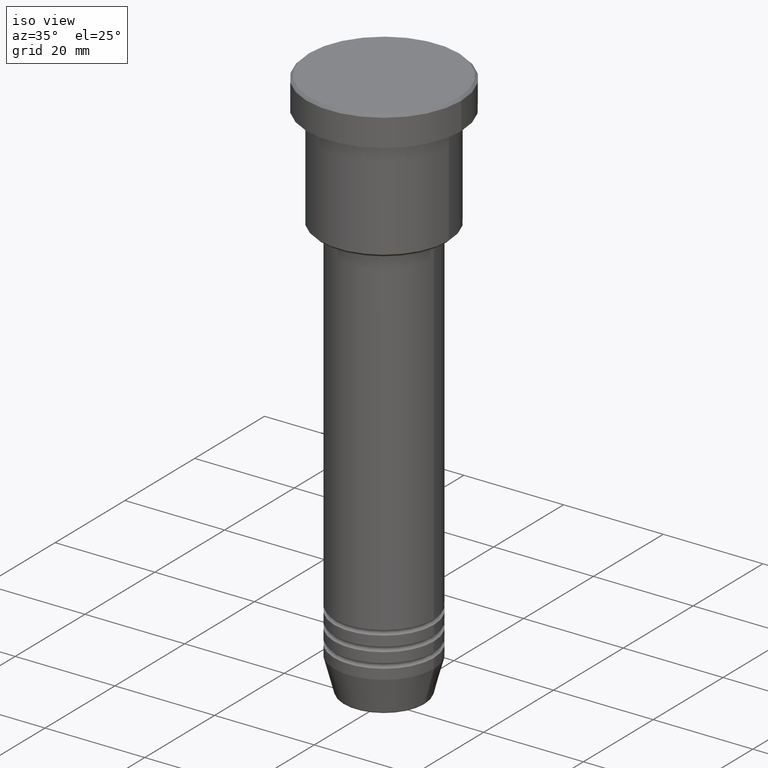
[diagram: clean part render]
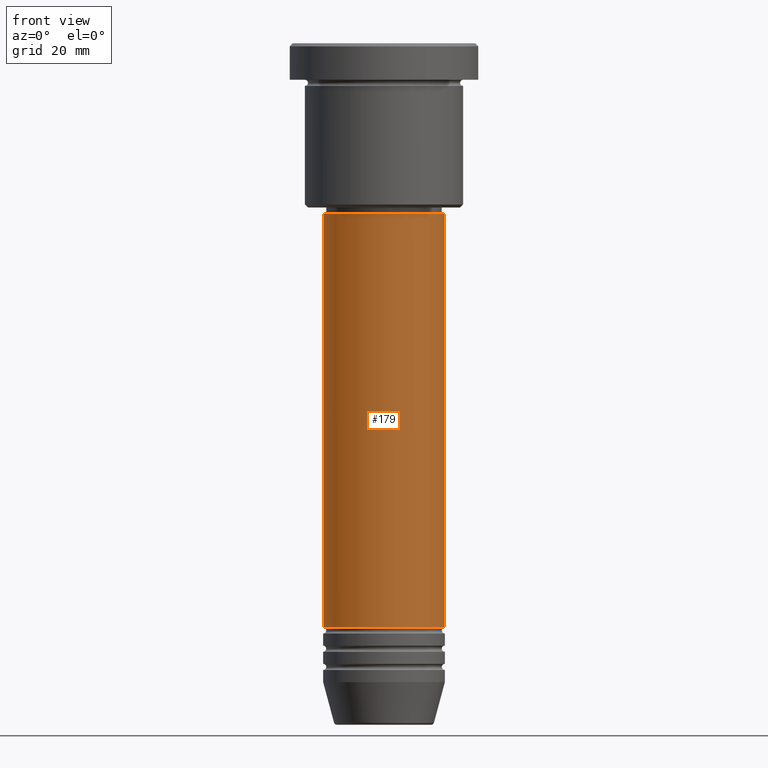
[diagram: tour spotlight — one face highlighted and labeled with its STEP entity id]
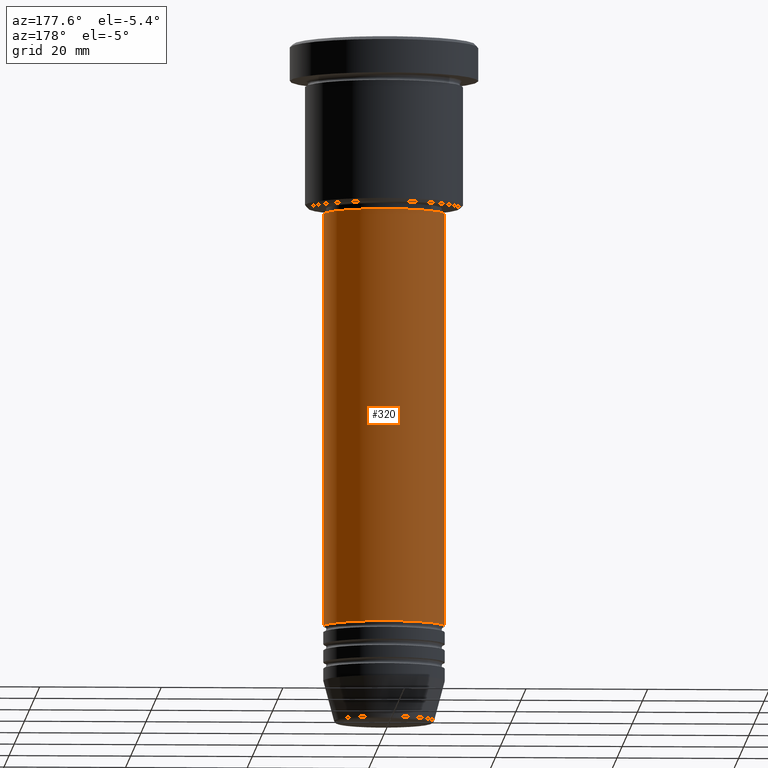
[diagram: tour spotlight — one face highlighted and labeled with its STEP entity id]
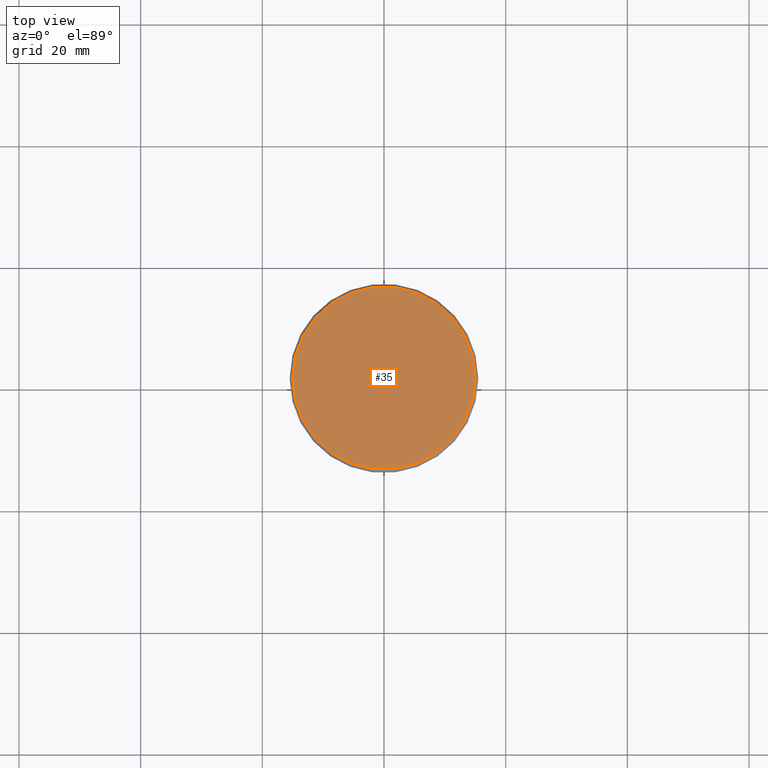
[diagram: tour spotlight — one face highlighted and labeled with its STEP entity id]
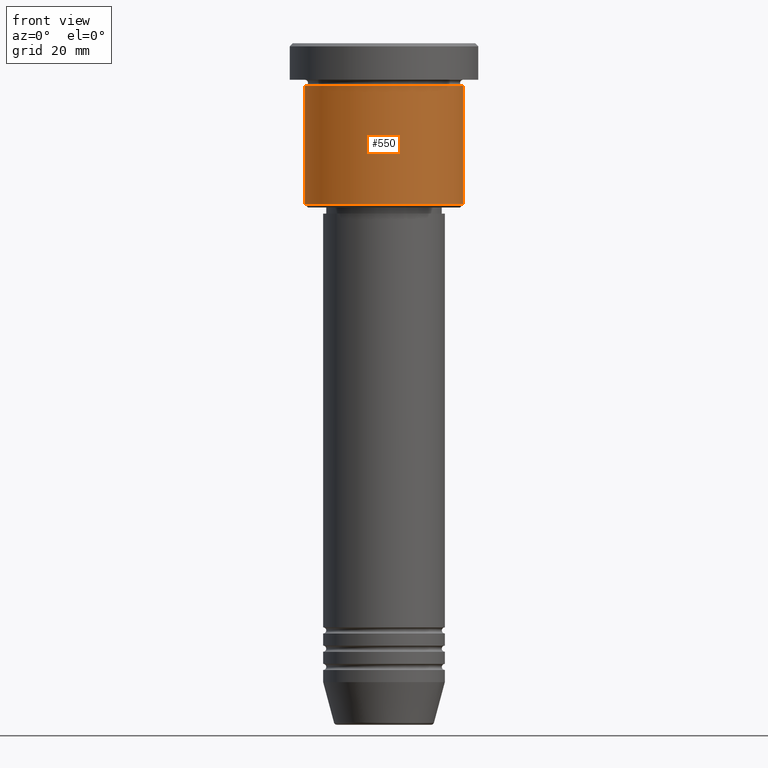
[diagram: tour spotlight — one face highlighted and labeled with its STEP entity id]
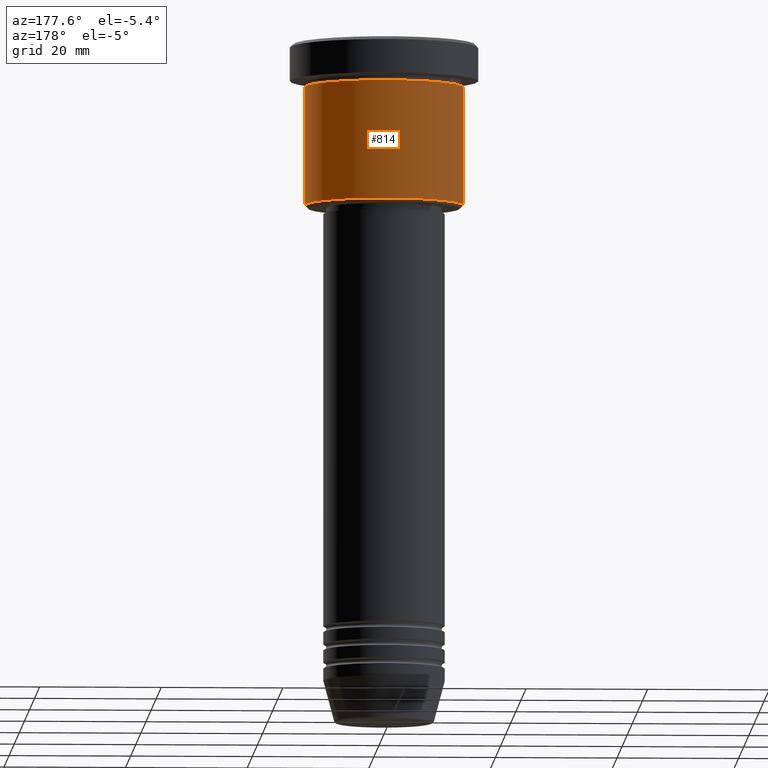
[diagram: tour spotlight — one face highlighted and labeled with its STEP entity id]
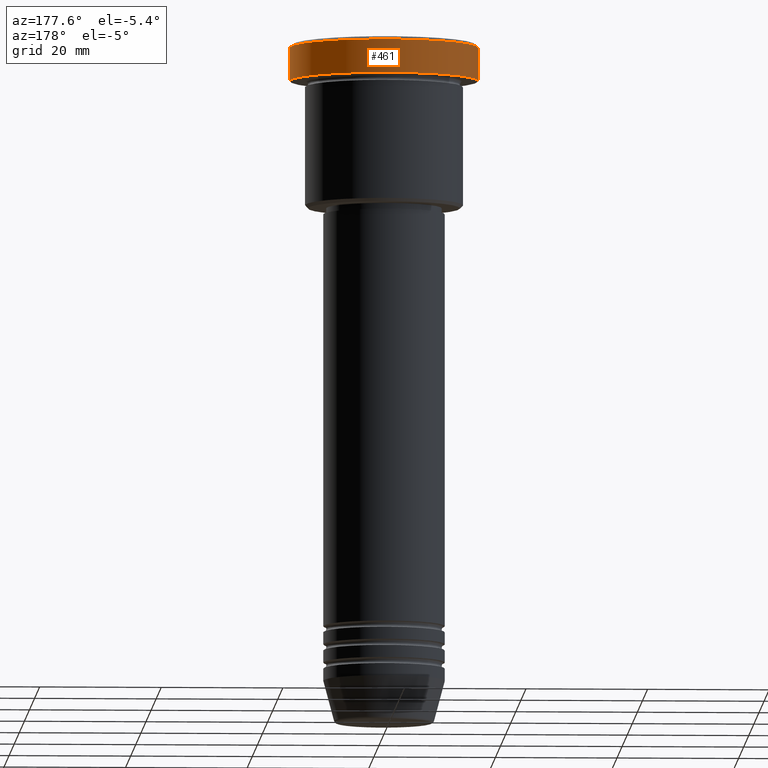
[diagram: tour spotlight — one face highlighted and labeled with its STEP entity id]
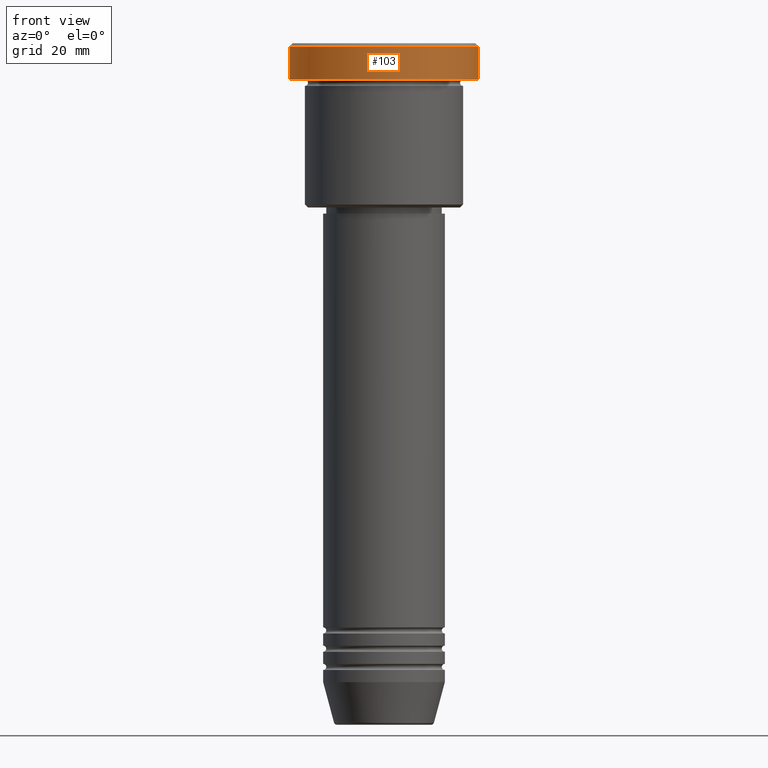
[diagram: tour spotlight — one face highlighted and labeled with its STEP entity id]
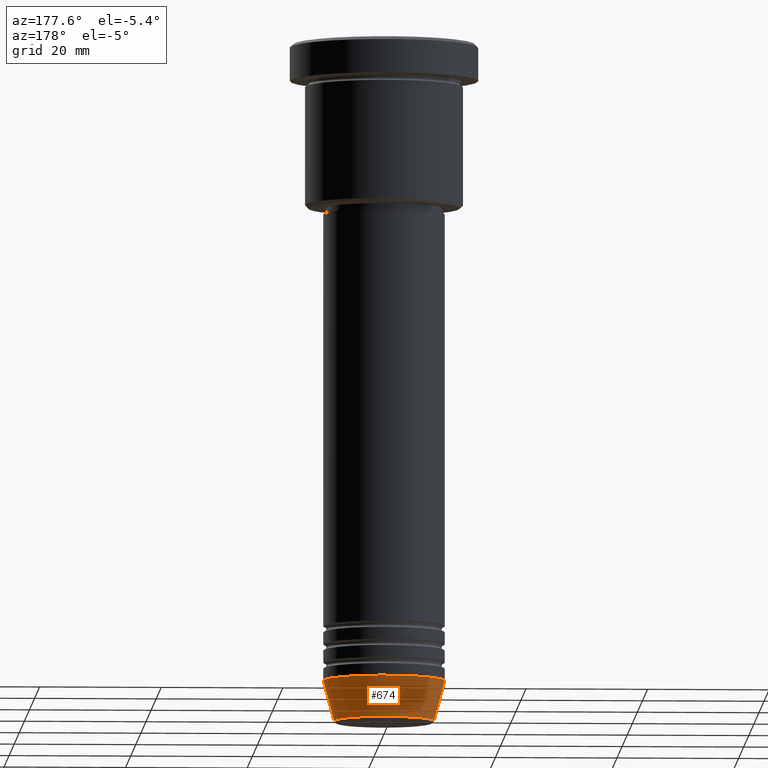
[diagram: tour spotlight — one face highlighted and labeled with its STEP entity id]
A machine part: a face-by-face anatomy tour. The part has 43 B-rep faces; the first image is the clean iso view, then the 8 largest visible faces are spotlighted one at a time (largest first), each with its STEP entity span.

Face 1 — front view, entity #179. In plain terms, the highlighted cylindrical surface (partial cylindrical patch) has radius 10 mm, axis along (-0, -0, 1).
Definition (entity closure, byte-faithful):
#51 = DIRECTION ( 'NONE',  ( 1.000000000000000000, 0.000000000000000000, 0.000000000000000000 ) ) ;
#57 = VECTOR ( 'NONE', #276, 1000.000000000000000 ) ;
#67 = EDGE_CURVE ( 'NONE', #1033, #838, #182, .T. ) ;
#97 = CARTESIAN_POINT ( 'NONE',  ( 10.00000000000000000, 0.000000000000000000, 0.000000000000000000 ) ) ;
#99 = ORIENTED_EDGE ( 'NONE', *, *, #339, .T. ) ;
#114 = CARTESIAN_POINT ( 'NONE',  ( 0.000000000000000000, 0.000000000000000000, 0.000000000000000000 ) ) ;
#146 = ORIENTED_EDGE ( 'NONE', *, *, #67, .F. ) ;
#156 = EDGE_CURVE ( 'NONE', #838, #1096, #908, .T. ) ;
#179 = ADVANCED_FACE ( 'NONE', ( #589 ), #398, .T. ) ;
#182 = LINE ( 'NONE', #543, #57 ) ;
#259 = CARTESIAN_POINT ( 'NONE',  ( -10.00000000000000000, 1.224646799147353256E-15, -28.00000000000000355 ) ) ;
#276 = DIRECTION ( 'NONE',  ( -0.000000000000000000, -0.000000000000000000, 1.000000000000000000 ) ) ;
#303 = EDGE_LOOP ( 'NONE', ( #146, #564, #99, #1057 ) ) ;
#311 = DIRECTION ( 'NONE',  ( -0.000000000000000000, -0.000000000000000000, 1.000000000000000000 ) ) ;
#333 = AXIS2_PLACEMENT_3D ( 'NONE', #114, #1042, #932 ) ;
#339 = EDGE_CURVE ( 'NONE', #514, #1096, #702, .T. ) ;
#398 = CYLINDRICAL_SURFACE ( 'NONE', #333, 10.00000000000000000 ) ;
#414 = CARTESIAN_POINT ( 'NONE',  ( 10.00000000000000000, 0.000000000000000000, -95.99999999999997158 ) ) ;
#419 = DIRECTION ( 'NONE',  ( -0.000000000000000000, -0.000000000000000000, 1.000000000000000000 ) ) ;
#435 = CARTESIAN_POINT ( 'NONE',  ( 0.000000000000000000, 0.000000000000000000, -95.99999999999997158 ) ) ;
#512 = CARTESIAN_POINT ( 'NONE',  ( 10.00000000000000000, 0.000000000000000000, -28.00000000000000355 ) ) ;
#514 = VERTEX_POINT ( 'NONE', #414 ) ;
#543 = CARTESIAN_POINT ( 'NONE',  ( -10.00000000000000000, 1.224646799147353256E-15, 0.000000000000000000 ) ) ;
#556 = VECTOR ( 'NONE', #708, 1000.000000000000000 ) ;
#564 = ORIENTED_EDGE ( 'NONE', *, *, #1034, .T. ) ;
#589 = FACE_OUTER_BOUND ( 'NONE', #303, .T. ) ;
#699 = CARTESIAN_POINT ( 'NONE',  ( -10.00000000000000000, 1.224646799147353256E-15, -95.99999999999997158 ) ) ;
#702 = LINE ( 'NONE', #97, #556 ) ;
#708 = DIRECTION ( 'NONE',  ( -0.000000000000000000, -0.000000000000000000, 1.000000000000000000 ) ) ;
#758 = CARTESIAN_POINT ( 'NONE',  ( 0.000000000000000000, 0.000000000000000000, -28.00000000000000355 ) ) ;
#838 = VERTEX_POINT ( 'NONE', #259 ) ;
#908 = CIRCLE ( 'NONE', #967, 10.00000000000000000 ) ;
#932 = DIRECTION ( 'NONE',  ( 1.000000000000000000, 0.000000000000000000, 0.000000000000000000 ) ) ;
#946 = AXIS2_PLACEMENT_3D ( 'NONE', #435, #419, #51 ) ;
#956 = DIRECTION ( 'NONE',  ( 1.000000000000000000, 0.000000000000000000, 0.000000000000000000 ) ) ;
#967 = AXIS2_PLACEMENT_3D ( 'NONE', #758, #311, #956 ) ;
#981 = CIRCLE ( 'NONE', #946, 10.00000000000000000 ) ;
#1033 = VERTEX_POINT ( 'NONE', #699 ) ;
#1034 = EDGE_CURVE ( 'NONE', #1033, #514, #981, .T. ) ;
#1042 = DIRECTION ( 'NONE',  ( -0.000000000000000000, -0.000000000000000000, 1.000000000000000000 ) ) ;
#1057 = ORIENTED_EDGE ( 'NONE', *, *, #156, .F. ) ;
#1096 = VERTEX_POINT ( 'NONE', #512 ) ;

Face 2 — auxiliary view, entity #320. In plain terms, the highlighted cylindrical surface (partial cylindrical patch) has radius 10 mm, axis along (-0, -0, 1).
Definition (entity closure, byte-faithful):
#57 = VECTOR ( 'NONE', #276, 1000.000000000000000 ) ;
#67 = EDGE_CURVE ( 'NONE', #1033, #838, #182, .T. ) ;
#75 = DIRECTION ( 'NONE',  ( -0.000000000000000000, -0.000000000000000000, 1.000000000000000000 ) ) ;
#89 = AXIS2_PLACEMENT_3D ( 'NONE', #309, #1102, #823 ) ;
#97 = CARTESIAN_POINT ( 'NONE',  ( 10.00000000000000000, 0.000000000000000000, 0.000000000000000000 ) ) ;
#151 = ORIENTED_EDGE ( 'NONE', *, *, #1100, .F. ) ;
#182 = LINE ( 'NONE', #543, #57 ) ;
#187 = ORIENTED_EDGE ( 'NONE', *, *, #604, .T. ) ;
#259 = CARTESIAN_POINT ( 'NONE',  ( -10.00000000000000000, 1.224646799147353256E-15, -28.00000000000000355 ) ) ;
#276 = DIRECTION ( 'NONE',  ( -0.000000000000000000, -0.000000000000000000, 1.000000000000000000 ) ) ;
#309 = CARTESIAN_POINT ( 'NONE',  ( 0.000000000000000000, 0.000000000000000000, -95.99999999999997158 ) ) ;
#320 = ADVANCED_FACE ( 'NONE', ( #988 ), #1079, .T. ) ;
#339 = EDGE_CURVE ( 'NONE', #514, #1096, #702, .T. ) ;
#344 = CIRCLE ( 'NONE', #89, 10.00000000000000000 ) ;
#414 = CARTESIAN_POINT ( 'NONE',  ( 10.00000000000000000, 0.000000000000000000, -95.99999999999997158 ) ) ;
#457 = ORIENTED_EDGE ( 'NONE', *, *, #67, .T. ) ;
#508 = ORIENTED_EDGE ( 'NONE', *, *, #339, .F. ) ;
#512 = CARTESIAN_POINT ( 'NONE',  ( 10.00000000000000000, 0.000000000000000000, -28.00000000000000355 ) ) ;
#514 = VERTEX_POINT ( 'NONE', #414 ) ;
#523 = CARTESIAN_POINT ( 'NONE',  ( 0.000000000000000000, 0.000000000000000000, -28.00000000000000355 ) ) ;
#543 = CARTESIAN_POINT ( 'NONE',  ( -10.00000000000000000, 1.224646799147353256E-15, 0.000000000000000000 ) ) ;
#556 = VECTOR ( 'NONE', #708, 1000.000000000000000 ) ;
#604 = EDGE_CURVE ( 'NONE', #514, #1033, #344, .T. ) ;
#668 = EDGE_LOOP ( 'NONE', ( #187, #457, #151, #508 ) ) ;
#699 = CARTESIAN_POINT ( 'NONE',  ( -10.00000000000000000, 1.224646799147353256E-15, -95.99999999999997158 ) ) ;
#702 = LINE ( 'NONE', #97, #556 ) ;
#708 = DIRECTION ( 'NONE',  ( -0.000000000000000000, -0.000000000000000000, 1.000000000000000000 ) ) ;
#782 = DIRECTION ( 'NONE',  ( 1.000000000000000000, 0.000000000000000000, 0.000000000000000000 ) ) ;
#793 = DIRECTION ( 'NONE',  ( 1.000000000000000000, 0.000000000000000000, 0.000000000000000000 ) ) ;
#811 = CARTESIAN_POINT ( 'NONE',  ( 0.000000000000000000, 0.000000000000000000, 0.000000000000000000 ) ) ;
#823 = DIRECTION ( 'NONE',  ( 1.000000000000000000, 0.000000000000000000, 0.000000000000000000 ) ) ;
#838 = VERTEX_POINT ( 'NONE', #259 ) ;
#878 = DIRECTION ( 'NONE',  ( -0.000000000000000000, -0.000000000000000000, 1.000000000000000000 ) ) ;
#988 = FACE_OUTER_BOUND ( 'NONE', #668, .T. ) ;
#1033 = VERTEX_POINT ( 'NONE', #699 ) ;
#1079 = CYLINDRICAL_SURFACE ( 'NONE', #1090, 10.00000000000000000 ) ;
#1090 = AXIS2_PLACEMENT_3D ( 'NONE', #811, #75, #793 ) ;
#1092 = AXIS2_PLACEMENT_3D ( 'NONE', #523, #878, #782 ) ;
#1096 = VERTEX_POINT ( 'NONE', #512 ) ;
#1100 = EDGE_CURVE ( 'NONE', #1096, #838, #1145, .T. ) ;
#1102 = DIRECTION ( 'NONE',  ( -0.000000000000000000, -0.000000000000000000, 1.000000000000000000 ) ) ;
#1145 = CIRCLE ( 'NONE', #1092, 10.00000000000000000 ) ;

Face 3 — top view, entity #35. In plain terms, the highlighted planar face has unit normal (0, -0, 1).
Definition (entity closure, byte-faithful):
#35 = ADVANCED_FACE ( 'NONE', ( #552 ), #336, .T. ) ;
#207 = DIRECTION ( 'NONE',  ( -0.000000000000000000, -0.000000000000000000, 1.000000000000000000 ) ) ;
#216 = EDGE_CURVE ( 'NONE', #1019, #647, #1074, .T. ) ;
#328 = DIRECTION ( 'NONE',  ( -0.000000000000000000, -0.000000000000000000, 1.000000000000000000 ) ) ;
#336 = PLANE ( 'NONE',  #982 ) ;
#366 = ORIENTED_EDGE ( 'NONE', *, *, #1119, .T. ) ;
#380 = EDGE_LOOP ( 'NONE', ( #796, #366 ) ) ;
#409 = AXIS2_PLACEMENT_3D ( 'NONE', #1158, #328, #688 ) ;
#464 = CIRCLE ( 'NONE', #409, 15.00000000000001421 ) ;
#552 = FACE_OUTER_BOUND ( 'NONE', #380, .T. ) ;
#574 = DIRECTION ( 'NONE',  ( 1.000000000000000000, 0.000000000000000000, 0.000000000000000000 ) ) ;
#647 = VERTEX_POINT ( 'NONE', #929 ) ;
#688 = DIRECTION ( 'NONE',  ( 1.000000000000000000, 0.000000000000000000, 0.000000000000000000 ) ) ;
#697 = CARTESIAN_POINT ( 'NONE',  ( 0.000000000000000000, 0.000000000000000000, 0.000000000000000000 ) ) ;
#795 = CARTESIAN_POINT ( 'NONE',  ( -15.00000000000001421, 0.000000000000000000, 0.000000000000000000 ) ) ;
#796 = ORIENTED_EDGE ( 'NONE', *, *, #216, .T. ) ;
#815 = DIRECTION ( 'NONE',  ( 1.000000000000000000, 0.000000000000000000, 0.000000000000000000 ) ) ;
#929 = CARTESIAN_POINT ( 'NONE',  ( 15.00000000000001421, 1.867586368699714559E-15, 0.000000000000000000 ) ) ;
#982 = AXIS2_PLACEMENT_3D ( 'NONE', #697, #1071, #815 ) ;
#1019 = VERTEX_POINT ( 'NONE', #795 ) ;
#1028 = CARTESIAN_POINT ( 'NONE',  ( 0.000000000000000000, 0.000000000000000000, 0.000000000000000000 ) ) ;
#1059 = AXIS2_PLACEMENT_3D ( 'NONE', #1028, #207, #574 ) ;
#1071 = DIRECTION ( 'NONE',  ( 0.000000000000000000, -0.000000000000000000, 1.000000000000000000 ) ) ;
#1074 = CIRCLE ( 'NONE', #1059, 15.00000000000001421 ) ;
#1119 = EDGE_CURVE ( 'NONE', #647, #1019, #464, .T. ) ;
#1158 = CARTESIAN_POINT ( 'NONE',  ( 0.000000000000000000, 0.000000000000000000, 0.000000000000000000 ) ) ;

Face 4 — front view, entity #550. In plain terms, the highlighted cylindrical surface (partial cylindrical patch) has radius 13 mm, axis along (-0, -0, 1).
Definition (entity closure, byte-faithful):
#10 = VECTOR ( 'NONE', #147, 1000.000000000000000 ) ;
#54 = CIRCLE ( 'NONE', #73, 13.00000000000000000 ) ;
#62 = VERTEX_POINT ( 'NONE', #893 ) ;
#73 = AXIS2_PLACEMENT_3D ( 'NONE', #319, #613, #167 ) ;
#94 = DIRECTION ( 'NONE',  ( -0.000000000000000000, -0.000000000000000000, 1.000000000000000000 ) ) ;
#139 = ORIENTED_EDGE ( 'NONE', *, *, #541, .T. ) ;
#147 = DIRECTION ( 'NONE',  ( -0.000000000000000000, -0.000000000000000000, 1.000000000000000000 ) ) ;
#167 = DIRECTION ( 'NONE',  ( -1.000000000000000000, 0.000000000000000000, 0.000000000000000000 ) ) ;
#191 = CARTESIAN_POINT ( 'NONE',  ( -13.00000000000000000, 1.592040838891559095E-15, -6.999999999999995559 ) ) ;
#211 = DIRECTION ( 'NONE',  ( 1.000000000000000000, 0.000000000000000000, 0.000000000000000000 ) ) ;
#244 = CARTESIAN_POINT ( 'NONE',  ( 13.00000000000000000, 0.000000000000000000, -26.49999999999997513 ) ) ;
#266 = VERTEX_POINT ( 'NONE', #244 ) ;
#279 = VERTEX_POINT ( 'NONE', #191 ) ;
#297 = CARTESIAN_POINT ( 'NONE',  ( 13.00000000000000000, 0.000000000000000000, 0.000000000000000000 ) ) ;
#304 = CARTESIAN_POINT ( 'NONE',  ( -13.00000000000000000, 1.592040838891559095E-15, 0.000000000000000000 ) ) ;
#318 = ORIENTED_EDGE ( 'NONE', *, *, #780, .T. ) ;
#319 = CARTESIAN_POINT ( 'NONE',  ( 0.000000000000000000, 0.000000000000000000, -26.49999999999997513 ) ) ;
#321 = DIRECTION ( 'NONE',  ( -0.000000000000000000, -0.000000000000000000, 1.000000000000000000 ) ) ;
#331 = VECTOR ( 'NONE', #1130, 1000.000000000000000 ) ;
#364 = EDGE_LOOP ( 'NONE', ( #427, #139, #318, #866 ) ) ;
#427 = ORIENTED_EDGE ( 'NONE', *, *, #693, .F. ) ;
#445 = CIRCLE ( 'NONE', #600, 13.00000000000000000 ) ;
#538 = CYLINDRICAL_SURFACE ( 'NONE', #719, 13.00000000000000000 ) ;
#541 = EDGE_CURVE ( 'NONE', #662, #266, #54, .T. ) ;
#550 = ADVANCED_FACE ( 'NONE', ( #763 ), #538, .T. ) ;
#600 = AXIS2_PLACEMENT_3D ( 'NONE', #603, #321, #1066 ) ;
#603 = CARTESIAN_POINT ( 'NONE',  ( 0.000000000000000000, 0.000000000000000000, -6.999999999999995559 ) ) ;
#611 = CARTESIAN_POINT ( 'NONE',  ( -13.00000000000000000, 1.592040838891559095E-15, -26.49999999999997513 ) ) ;
#613 = DIRECTION ( 'NONE',  ( -0.000000000000000000, -0.000000000000000000, 1.000000000000000000 ) ) ;
#662 = VERTEX_POINT ( 'NONE', #611 ) ;
#679 = LINE ( 'NONE', #304, #331 ) ;
#693 = EDGE_CURVE ( 'NONE', #662, #279, #679, .T. ) ;
#719 = AXIS2_PLACEMENT_3D ( 'NONE', #906, #94, #211 ) ;
#763 = FACE_OUTER_BOUND ( 'NONE', #364, .T. ) ;
#780 = EDGE_CURVE ( 'NONE', #266, #62, #1122, .T. ) ;
#830 = EDGE_CURVE ( 'NONE', #279, #62, #445, .T. ) ;
#866 = ORIENTED_EDGE ( 'NONE', *, *, #830, .F. ) ;
#893 = CARTESIAN_POINT ( 'NONE',  ( 13.00000000000000000, 0.000000000000000000, -6.999999999999995559 ) ) ;
#906 = CARTESIAN_POINT ( 'NONE',  ( 0.000000000000000000, 0.000000000000000000, 0.000000000000000000 ) ) ;
#1066 = DIRECTION ( 'NONE',  ( 1.000000000000000000, 0.000000000000000000, 0.000000000000000000 ) ) ;
#1122 = LINE ( 'NONE', #297, #10 ) ;
#1130 = DIRECTION ( 'NONE',  ( -0.000000000000000000, -0.000000000000000000, 1.000000000000000000 ) ) ;

Face 5 — auxiliary view, entity #814. In plain terms, the highlighted cylindrical surface (partial cylindrical patch) has radius 13 mm, axis along (-0, -0, 1).
Definition (entity closure, byte-faithful):
#2 = ORIENTED_EDGE ( 'NONE', *, *, #498, .F. ) ;
#10 = VECTOR ( 'NONE', #147, 1000.000000000000000 ) ;
#62 = VERTEX_POINT ( 'NONE', #893 ) ;
#64 = CARTESIAN_POINT ( 'NONE',  ( 0.000000000000000000, 0.000000000000000000, -26.49999999999997513 ) ) ;
#88 = CIRCLE ( 'NONE', #1016, 13.00000000000000000 ) ;
#133 = CARTESIAN_POINT ( 'NONE',  ( 0.000000000000000000, 0.000000000000000000, -6.999999999999995559 ) ) ;
#147 = DIRECTION ( 'NONE',  ( -0.000000000000000000, -0.000000000000000000, 1.000000000000000000 ) ) ;
#177 = CARTESIAN_POINT ( 'NONE',  ( 0.000000000000000000, 0.000000000000000000, 0.000000000000000000 ) ) ;
#191 = CARTESIAN_POINT ( 'NONE',  ( -13.00000000000000000, 1.592040838891559095E-15, -6.999999999999995559 ) ) ;
#234 = AXIS2_PLACEMENT_3D ( 'NONE', #64, #423, #1113 ) ;
#244 = CARTESIAN_POINT ( 'NONE',  ( 13.00000000000000000, 0.000000000000000000, -26.49999999999997513 ) ) ;
#266 = VERTEX_POINT ( 'NONE', #244 ) ;
#279 = VERTEX_POINT ( 'NONE', #191 ) ;
#297 = CARTESIAN_POINT ( 'NONE',  ( 13.00000000000000000, 0.000000000000000000, 0.000000000000000000 ) ) ;
#304 = CARTESIAN_POINT ( 'NONE',  ( -13.00000000000000000, 1.592040838891559095E-15, 0.000000000000000000 ) ) ;
#331 = VECTOR ( 'NONE', #1130, 1000.000000000000000 ) ;
#342 = FACE_OUTER_BOUND ( 'NONE', #845, .T. ) ;
#396 = ORIENTED_EDGE ( 'NONE', *, *, #836, .T. ) ;
#423 = DIRECTION ( 'NONE',  ( -0.000000000000000000, -0.000000000000000000, 1.000000000000000000 ) ) ;
#498 = EDGE_CURVE ( 'NONE', #62, #279, #88, .T. ) ;
#516 = CYLINDRICAL_SURFACE ( 'NONE', #1117, 13.00000000000000000 ) ;
#611 = CARTESIAN_POINT ( 'NONE',  ( -13.00000000000000000, 1.592040838891559095E-15, -26.49999999999997513 ) ) ;
#638 = ORIENTED_EDGE ( 'NONE', *, *, #693, .T. ) ;
#662 = VERTEX_POINT ( 'NONE', #611 ) ;
#679 = LINE ( 'NONE', #304, #331 ) ;
#693 = EDGE_CURVE ( 'NONE', #662, #279, #679, .T. ) ;
#745 = CIRCLE ( 'NONE', #234, 13.00000000000000000 ) ;
#760 = DIRECTION ( 'NONE',  ( -0.000000000000000000, -0.000000000000000000, 1.000000000000000000 ) ) ;
#780 = EDGE_CURVE ( 'NONE', #266, #62, #1122, .T. ) ;
#814 = ADVANCED_FACE ( 'NONE', ( #342 ), #516, .T. ) ;
#836 = EDGE_CURVE ( 'NONE', #266, #662, #745, .T. ) ;
#845 = EDGE_LOOP ( 'NONE', ( #396, #638, #2, #905 ) ) ;
#883 = DIRECTION ( 'NONE',  ( -0.000000000000000000, -0.000000000000000000, 1.000000000000000000 ) ) ;
#893 = CARTESIAN_POINT ( 'NONE',  ( 13.00000000000000000, 0.000000000000000000, -6.999999999999995559 ) ) ;
#905 = ORIENTED_EDGE ( 'NONE', *, *, #780, .F. ) ;
#1016 = AXIS2_PLACEMENT_3D ( 'NONE', #133, #760, #1148 ) ;
#1113 = DIRECTION ( 'NONE',  ( -1.000000000000000000, 0.000000000000000000, 0.000000000000000000 ) ) ;
#1117 = AXIS2_PLACEMENT_3D ( 'NONE', #177, #883, #1165 ) ;
#1122 = LINE ( 'NONE', #297, #10 ) ;
#1130 = DIRECTION ( 'NONE',  ( -0.000000000000000000, -0.000000000000000000, 1.000000000000000000 ) ) ;
#1148 = DIRECTION ( 'NONE',  ( 1.000000000000000000, 0.000000000000000000, 0.000000000000000000 ) ) ;
#1165 = DIRECTION ( 'NONE',  ( 1.000000000000000000, 0.000000000000000000, 0.000000000000000000 ) ) ;

Face 6 — auxiliary view, entity #461. In plain terms, the highlighted cylindrical surface (partial cylindrical patch) has radius 15.5 mm, axis along (-0, -0, 1).
Definition (entity closure, byte-faithful):
#37 = AXIS2_PLACEMENT_3D ( 'NONE', #837, #393, #387 ) ;
#96 = ORIENTED_EDGE ( 'NONE', *, *, #949, .T. ) ;
#124 = DIRECTION ( 'NONE',  ( -0.000000000000000000, -0.000000000000000000, 1.000000000000000000 ) ) ;
#240 = DIRECTION ( 'NONE',  ( -0.000000000000000000, -0.000000000000000000, 1.000000000000000000 ) ) ;
#324 = CARTESIAN_POINT ( 'NONE',  ( 0.000000000000000000, 0.000000000000000000, -5.999999999999995559 ) ) ;
#387 = DIRECTION ( 'NONE',  ( 1.000000000000000000, 0.000000000000000000, 0.000000000000000000 ) ) ;
#393 = DIRECTION ( 'NONE',  ( 0.000000000000000000, 0.000000000000000000, -1.000000000000000000 ) ) ;
#401 = VERTEX_POINT ( 'NONE', #1181 ) ;
#429 = VECTOR ( 'NONE', #854, 1000.000000000000000 ) ;
#461 = ADVANCED_FACE ( 'NONE', ( #553 ), #724, .T. ) ;
#492 = LINE ( 'NONE', #1017, #429 ) ;
#553 = FACE_OUTER_BOUND ( 'NONE', #1073, .T. ) ;
#571 = ORIENTED_EDGE ( 'NONE', *, *, #666, .T. ) ;
#572 = CARTESIAN_POINT ( 'NONE',  ( 15.50000000000000000, 0.000000000000000000, 0.000000000000000000 ) ) ;
#585 = CARTESIAN_POINT ( 'NONE',  ( -15.50000000000000000, 1.898202538678397557E-15, -0.4999999999999987232 ) ) ;
#625 = EDGE_CURVE ( 'NONE', #900, #885, #492, .T. ) ;
#641 = DIRECTION ( 'NONE',  ( 1.000000000000000000, 0.000000000000000000, 0.000000000000000000 ) ) ;
#653 = DIRECTION ( 'NONE',  ( -0.000000000000000000, -0.000000000000000000, 1.000000000000000000 ) ) ;
#657 = EDGE_CURVE ( 'NONE', #813, #401, #1022, .T. ) ;
#666 = EDGE_CURVE ( 'NONE', #813, #900, #891, .T. ) ;
#677 = DIRECTION ( 'NONE',  ( 1.000000000000000000, 0.000000000000000000, 0.000000000000000000 ) ) ;
#724 = CYLINDRICAL_SURFACE ( 'NONE', #773, 15.50000000000000000 ) ;
#734 = ORIENTED_EDGE ( 'NONE', *, *, #657, .F. ) ;
#773 = AXIS2_PLACEMENT_3D ( 'NONE', #1088, #653, #641 ) ;
#813 = VERTEX_POINT ( 'NONE', #1004 ) ;
#837 = CARTESIAN_POINT ( 'NONE',  ( 0.000000000000000000, 0.000000000000000000, -0.4999999999999987232 ) ) ;
#854 = DIRECTION ( 'NONE',  ( -0.000000000000000000, -0.000000000000000000, 1.000000000000000000 ) ) ;
#885 = VERTEX_POINT ( 'NONE', #585 ) ;
#891 = CIRCLE ( 'NONE', #1018, 15.50000000000000000 ) ;
#900 = VERTEX_POINT ( 'NONE', #927 ) ;
#927 = CARTESIAN_POINT ( 'NONE',  ( -15.50000000000000000, 1.898202538678397557E-15, -5.999999999999995559 ) ) ;
#949 = EDGE_CURVE ( 'NONE', #885, #401, #999, .T. ) ;
#999 = CIRCLE ( 'NONE', #37, 15.50000000000000000 ) ;
#1004 = CARTESIAN_POINT ( 'NONE',  ( 15.50000000000000000, 0.000000000000000000, -5.999999999999995559 ) ) ;
#1008 = ORIENTED_EDGE ( 'NONE', *, *, #625, .T. ) ;
#1017 = CARTESIAN_POINT ( 'NONE',  ( -15.50000000000000000, 1.898202538678397557E-15, 0.000000000000000000 ) ) ;
#1018 = AXIS2_PLACEMENT_3D ( 'NONE', #324, #240, #677 ) ;
#1022 = LINE ( 'NONE', #572, #1075 ) ;
#1073 = EDGE_LOOP ( 'NONE', ( #571, #1008, #96, #734 ) ) ;
#1075 = VECTOR ( 'NONE', #124, 1000.000000000000000 ) ;
#1088 = CARTESIAN_POINT ( 'NONE',  ( 0.000000000000000000, 0.000000000000000000, 0.000000000000000000 ) ) ;
#1181 = CARTESIAN_POINT ( 'NONE',  ( 15.50000000000000000, 0.000000000000000000, -0.4999999999999987232 ) ) ;

Face 7 — front view, entity #103. In plain terms, the highlighted cylindrical surface (partial cylindrical patch) has radius 15.5 mm, axis along (-0, -0, 1).
Definition (entity closure, byte-faithful):
#46 = DIRECTION ( 'NONE',  ( 1.000000000000000000, 0.000000000000000000, 0.000000000000000000 ) ) ;
#103 = ADVANCED_FACE ( 'NONE', ( #652 ), #857, .T. ) ;
#109 = CIRCLE ( 'NONE', #1076, 15.50000000000000000 ) ;
#124 = DIRECTION ( 'NONE',  ( -0.000000000000000000, -0.000000000000000000, 1.000000000000000000 ) ) ;
#143 = DIRECTION ( 'NONE',  ( -0.000000000000000000, -0.000000000000000000, 1.000000000000000000 ) ) ;
#203 = CARTESIAN_POINT ( 'NONE',  ( 0.000000000000000000, 0.000000000000000000, 0.000000000000000000 ) ) ;
#232 = ORIENTED_EDGE ( 'NONE', *, *, #1013, .T. ) ;
#391 = DIRECTION ( 'NONE',  ( 1.000000000000000000, 0.000000000000000000, 0.000000000000000000 ) ) ;
#401 = VERTEX_POINT ( 'NONE', #1181 ) ;
#411 = ORIENTED_EDGE ( 'NONE', *, *, #657, .T. ) ;
#429 = VECTOR ( 'NONE', #854, 1000.000000000000000 ) ;
#479 = CARTESIAN_POINT ( 'NONE',  ( 0.000000000000000000, 0.000000000000000000, -0.4999999999999987232 ) ) ;
#491 = ORIENTED_EDGE ( 'NONE', *, *, #625, .F. ) ;
#492 = LINE ( 'NONE', #1017, #429 ) ;
#518 = EDGE_LOOP ( 'NONE', ( #491, #232, #411, #895 ) ) ;
#572 = CARTESIAN_POINT ( 'NONE',  ( 15.50000000000000000, 0.000000000000000000, 0.000000000000000000 ) ) ;
#585 = CARTESIAN_POINT ( 'NONE',  ( -15.50000000000000000, 1.898202538678397557E-15, -0.4999999999999987232 ) ) ;
#598 = DIRECTION ( 'NONE',  ( -0.000000000000000000, -0.000000000000000000, 1.000000000000000000 ) ) ;
#609 = DIRECTION ( 'NONE',  ( 1.000000000000000000, 0.000000000000000000, 0.000000000000000000 ) ) ;
#625 = EDGE_CURVE ( 'NONE', #900, #885, #492, .T. ) ;
#633 = CIRCLE ( 'NONE', #673, 15.50000000000000000 ) ;
#652 = FACE_OUTER_BOUND ( 'NONE', #518, .T. ) ;
#657 = EDGE_CURVE ( 'NONE', #813, #401, #1022, .T. ) ;
#673 = AXIS2_PLACEMENT_3D ( 'NONE', #971, #598, #609 ) ;
#810 = AXIS2_PLACEMENT_3D ( 'NONE', #203, #143, #391 ) ;
#813 = VERTEX_POINT ( 'NONE', #1004 ) ;
#854 = DIRECTION ( 'NONE',  ( -0.000000000000000000, -0.000000000000000000, 1.000000000000000000 ) ) ;
#857 = CYLINDRICAL_SURFACE ( 'NONE', #810, 15.50000000000000000 ) ;
#885 = VERTEX_POINT ( 'NONE', #585 ) ;
#895 = ORIENTED_EDGE ( 'NONE', *, *, #941, .T. ) ;
#900 = VERTEX_POINT ( 'NONE', #927 ) ;
#927 = CARTESIAN_POINT ( 'NONE',  ( -15.50000000000000000, 1.898202538678397557E-15, -5.999999999999995559 ) ) ;
#941 = EDGE_CURVE ( 'NONE', #401, #885, #109, .T. ) ;
#971 = CARTESIAN_POINT ( 'NONE',  ( 0.000000000000000000, 0.000000000000000000, -5.999999999999995559 ) ) ;
#1004 = CARTESIAN_POINT ( 'NONE',  ( 15.50000000000000000, 0.000000000000000000, -5.999999999999995559 ) ) ;
#1013 = EDGE_CURVE ( 'NONE', #900, #813, #633, .T. ) ;
#1014 = DIRECTION ( 'NONE',  ( 0.000000000000000000, 0.000000000000000000, -1.000000000000000000 ) ) ;
#1017 = CARTESIAN_POINT ( 'NONE',  ( -15.50000000000000000, 1.898202538678397557E-15, 0.000000000000000000 ) ) ;
#1022 = LINE ( 'NONE', #572, #1075 ) ;
#1075 = VECTOR ( 'NONE', #124, 1000.000000000000000 ) ;
#1076 = AXIS2_PLACEMENT_3D ( 'NONE', #479, #1014, #46 ) ;
#1181 = CARTESIAN_POINT ( 'NONE',  ( 15.50000000000000000, 0.000000000000000000, -0.4999999999999987232 ) ) ;

Face 8 — auxiliary view, entity #674. In plain terms, the highlighted conical surface has half-angle 15 deg.
Definition (entity closure, byte-faithful):
#5 = EDGE_CURVE ( 'NONE', #1093, #212, #1105, .T. ) ;
#16 = CARTESIAN_POINT ( 'NONE',  ( 10.00000000000000000, 0.000000000000000000, -105.0000000000000142 ) ) ;
#78 = VERTEX_POINT ( 'NONE', #640 ) ;
#163 = FACE_OUTER_BOUND ( 'NONE', #549, .T. ) ;
#174 = AXIS2_PLACEMENT_3D ( 'NONE', #1099, #820, #545 ) ;
#198 = CONICAL_SURFACE ( 'NONE', #358, 10.00000000000000000, 0.2617993877991500740 ) ;
#212 = VERTEX_POINT ( 'NONE', #483 ) ;
#221 = DIRECTION ( 'NONE',  ( 1.000000000000000000, 0.000000000000000000, 0.000000000000000000 ) ) ;
#235 = CIRCLE ( 'NONE', #174, 10.00000000000000000 ) ;
#260 = DIRECTION ( 'NONE',  ( -0.000000000000000000, -0.000000000000000000, 1.000000000000000000 ) ) ;
#270 = VECTOR ( 'NONE', #980, 1000.000000000000000 ) ;
#278 = EDGE_CURVE ( 'NONE', #1093, #78, #312, .T. ) ;
#302 = ORIENTED_EDGE ( 'NONE', *, *, #5, .F. ) ;
#312 = CIRCLE ( 'NONE', #996, 8.223655072137191269 ) ;
#335 = CARTESIAN_POINT ( 'NONE',  ( 8.223655072137191269, 0.000000000000000000, -111.6294095225512706 ) ) ;
#345 = CARTESIAN_POINT ( 'NONE',  ( 0.000000000000000000, 0.000000000000000000, -105.0000000000000142 ) ) ;
#351 = CARTESIAN_POINT ( 'NONE',  ( 0.000000000000000000, 0.000000000000000000, -111.6294095225512706 ) ) ;
#358 = AXIS2_PLACEMENT_3D ( 'NONE', #345, #260, #221 ) ;
#426 = LINE ( 'NONE', #874, #270 ) ;
#483 = CARTESIAN_POINT ( 'NONE',  ( 10.00000000000000000, 0.000000000000000000, -105.0000000000000142 ) ) ;
#537 = ORIENTED_EDGE ( 'NONE', *, *, #1009, .T. ) ;
#545 = DIRECTION ( 'NONE',  ( 1.000000000000000000, 0.000000000000000000, 0.000000000000000000 ) ) ;
#547 = ORIENTED_EDGE ( 'NONE', *, *, #1168, .F. ) ;
#549 = EDGE_LOOP ( 'NONE', ( #962, #537, #547, #302 ) ) ;
#640 = CARTESIAN_POINT ( 'NONE',  ( -8.223655072137191269, 1.115877042642912054E-15, -111.6294095225512706 ) ) ;
#674 = ADVANCED_FACE ( 'NONE', ( #163 ), #198, .T. ) ;
#820 = DIRECTION ( 'NONE',  ( -0.000000000000000000, -0.000000000000000000, 1.000000000000000000 ) ) ;
#851 = VECTOR ( 'NONE', #1007, 1000.000000000000000 ) ;
#863 = CARTESIAN_POINT ( 'NONE',  ( -10.00000000000000000, 1.224646799147353256E-15, -105.0000000000000142 ) ) ;
#874 = CARTESIAN_POINT ( 'NONE',  ( -10.00000000000000000, 1.224646799147353256E-15, -105.0000000000000142 ) ) ;
#962 = ORIENTED_EDGE ( 'NONE', *, *, #278, .T. ) ;
#980 = DIRECTION ( 'NONE',  ( -0.2588190451025213501, 3.169619151431772337E-17, 0.9659258262890680902 ) ) ;
#992 = DIRECTION ( 'NONE',  ( 1.000000000000000000, 0.000000000000000000, 0.000000000000000000 ) ) ;
#996 = AXIS2_PLACEMENT_3D ( 'NONE', #351, #1006, #992 ) ;
#998 = VERTEX_POINT ( 'NONE', #863 ) ;
#1006 = DIRECTION ( 'NONE',  ( -0.000000000000000000, -0.000000000000000000, 1.000000000000000000 ) ) ;
#1007 = DIRECTION ( 'NONE',  ( 0.2588190451025213501, 0.000000000000000000, 0.9659258262890680902 ) ) ;
#1009 = EDGE_CURVE ( 'NONE', #78, #998, #426, .T. ) ;
#1093 = VERTEX_POINT ( 'NONE', #335 ) ;
#1099 = CARTESIAN_POINT ( 'NONE',  ( 0.000000000000000000, 0.000000000000000000, -105.0000000000000142 ) ) ;
#1105 = LINE ( 'NONE', #16, #851 ) ;
#1168 = EDGE_CURVE ( 'NONE', #212, #998, #235, .T. ) ;